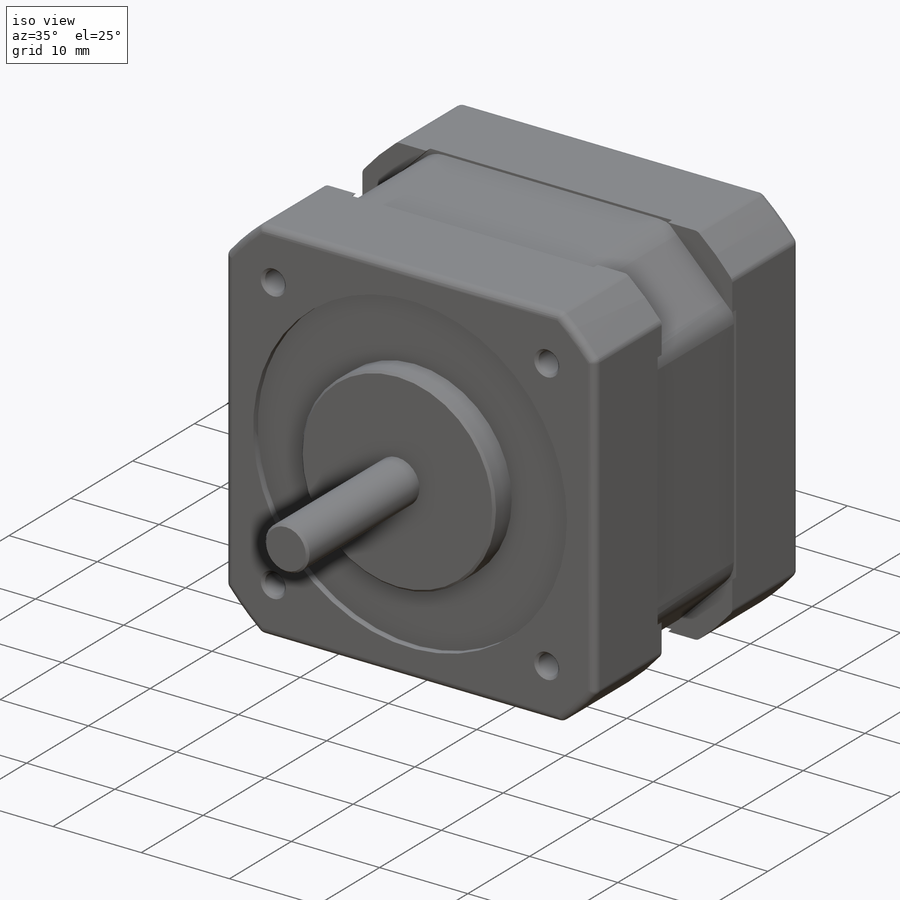
[diagram: iso view]
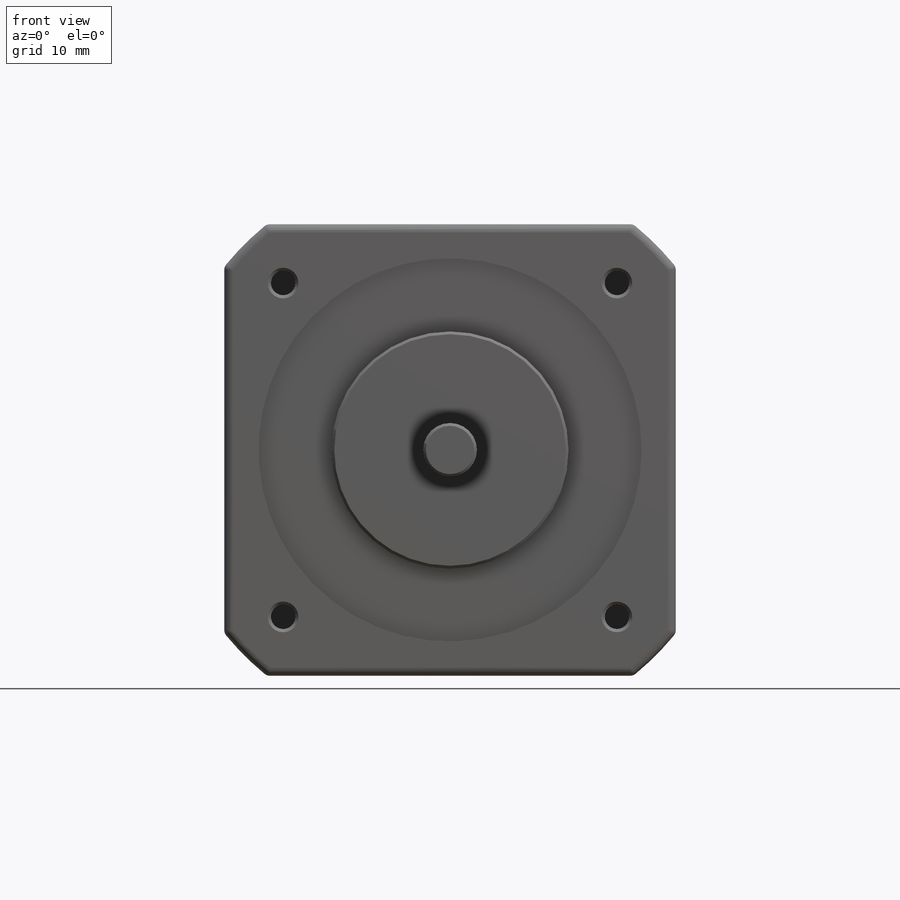
[diagram: front view]
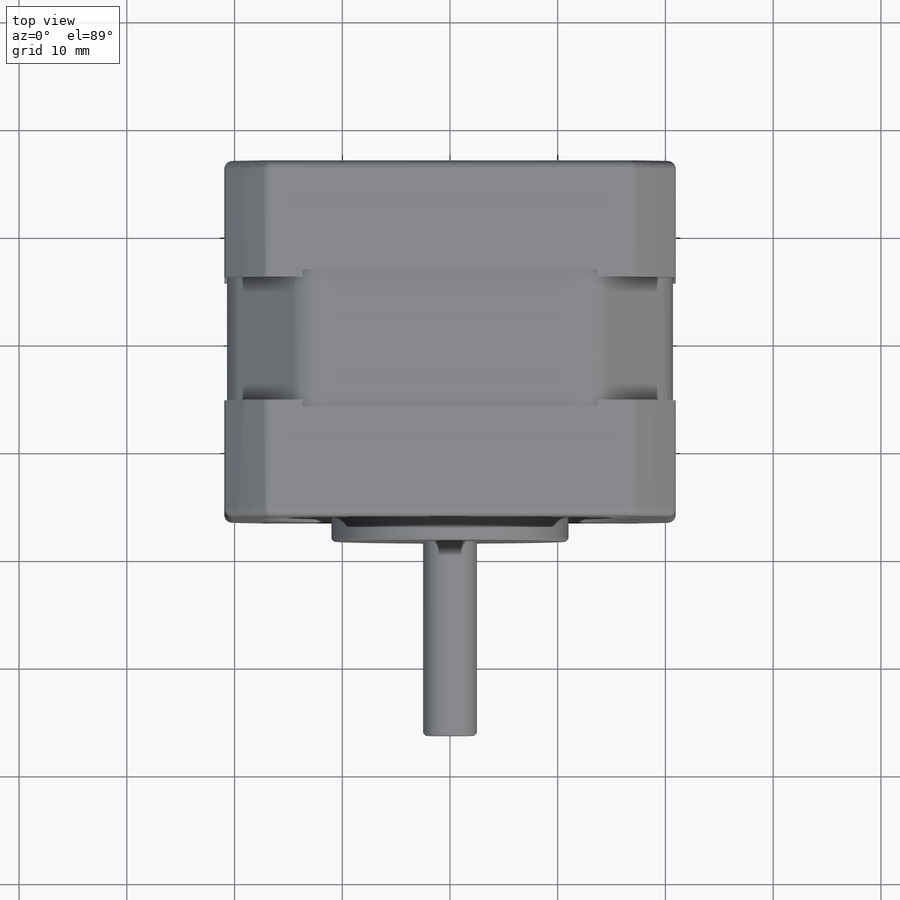
[diagram: top view]
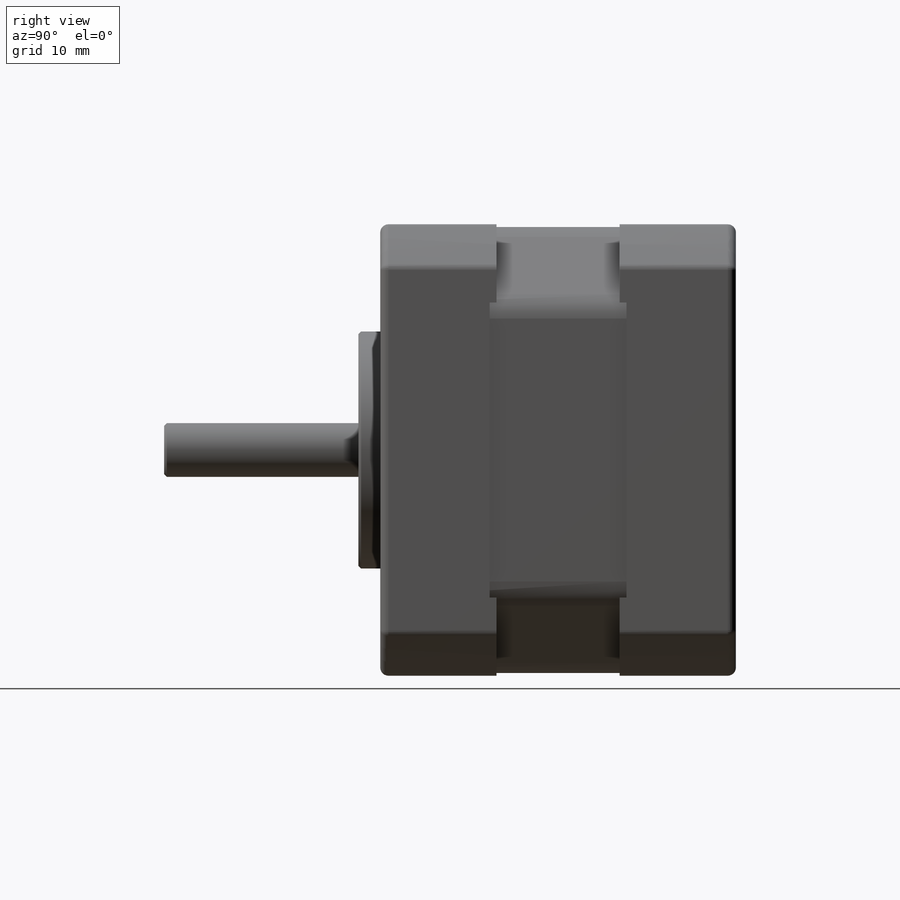
[diagram: right view]
SOLIDWORKS PART (.sldprt)
format: sldprt  version: not decoded by parser v0  size: 453,632 bytes
history: native  units: mm
features: sketch x8, cut_extrude x4, extrude x3, chamfer x3, fillet x2, material x1, pattern_circular x1 (+13 scaffold rows collapsed)
feature tree (35):
  scaffold x13  (default folders/planes/origin — collapsed)
  material  "Material <not specified>"
  sketch  "Sketch1"  dims[D1=41.91mm]
  extrude  "Base-Extrude"  Depth=33.02mm
  sketch  "Sketch2"  dims[D1=53.975mm]
  cut_extrude  "Cut-Extrude1"  Depth=33.02mm
  sketch  "Sketch3"  dims[c1.D5=10.16mm c1.D6=~26.527932mm c2.D6=135.0deg c2.D1=0.254mm c2.D2=0.254mm c2.D3=0.254mm c2.D4=0.254mm c3.D1=12.7mm c3.D5=0.3048mm c3.D6=1.0mm c3.D7=5.0mm]
  sketch  "Sketch4"
  cut_extrude  "Cut-Extrude2"  Depth=11.43mm
  sketch  "Sketch5"  dims[D1=~22.00148mm]
  extrude  "Boss-Extrude1"  Depth=2.032mm
  sketch  "Sketch6"  dims[D1=~4.99872mm]
  extrude  "Boss-Extrude2"  Depth=18.034mm
  chamfer  "Chamfer2"  Distance=0.254mm Angle=45deg
  sketch  "Sketch7"  dims[D1=35.56mm]
  cut_extrude  "Cut-Extrude3"  Depth=0.762mm
  chamfer  "Chamfer3"  Distance=0.254mm Angle=45deg
  fillet  "Fillet1"  Radius=3.175mm
  sketch  "Sketch8"  dims[c1.D1=~47.711451mm c1.D3=2.2606mm c2.D1=15.494mm c2.D2=15.494mm]
  cut_extrude  "Cut-Extrude4"  Depth=4.318mm
  chamfer  "Chamfer5"  Distance=0.2921mm Angle=45deg
  pattern_circular  "CirPattern1"  Count=4 Angle=360deg
  fillet  "Fillet2"  Radius=0.762mm
decode coverage: 20 of 21 modeling features carry decoded parameters
note: ~ marks probable driven/reference dimensions
note: suppression state not decoded; provenance and decode notes live in map.json
